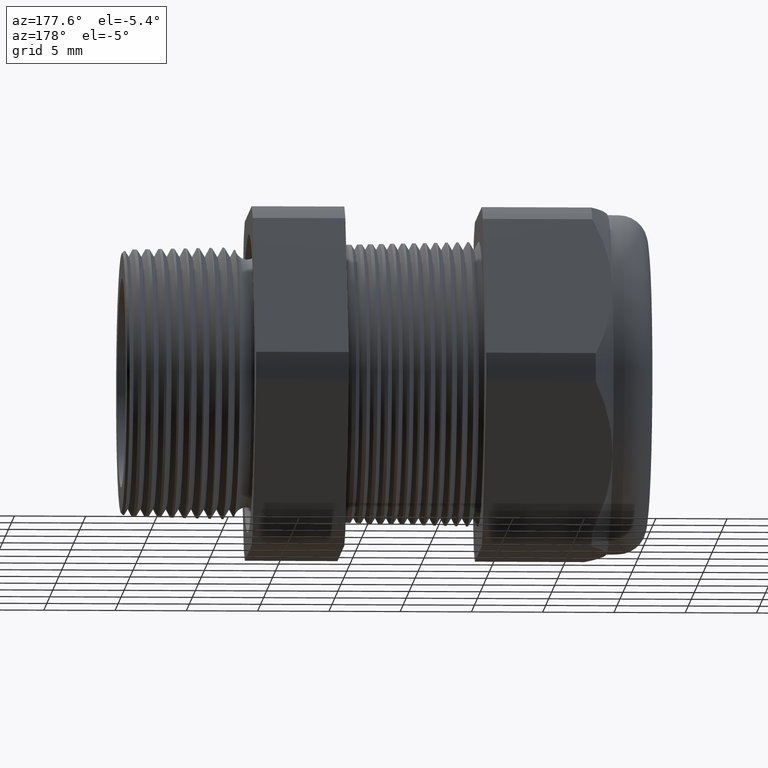
[diagram: clean part render]
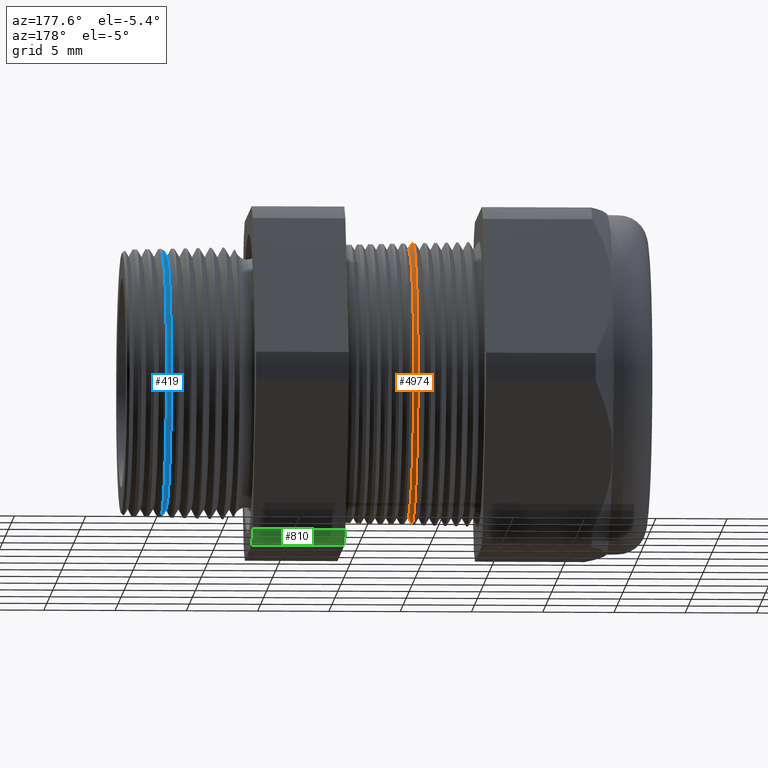
[diagram: same view with three faces highlighted in distinct colors, each labeled with its STEP entity id]
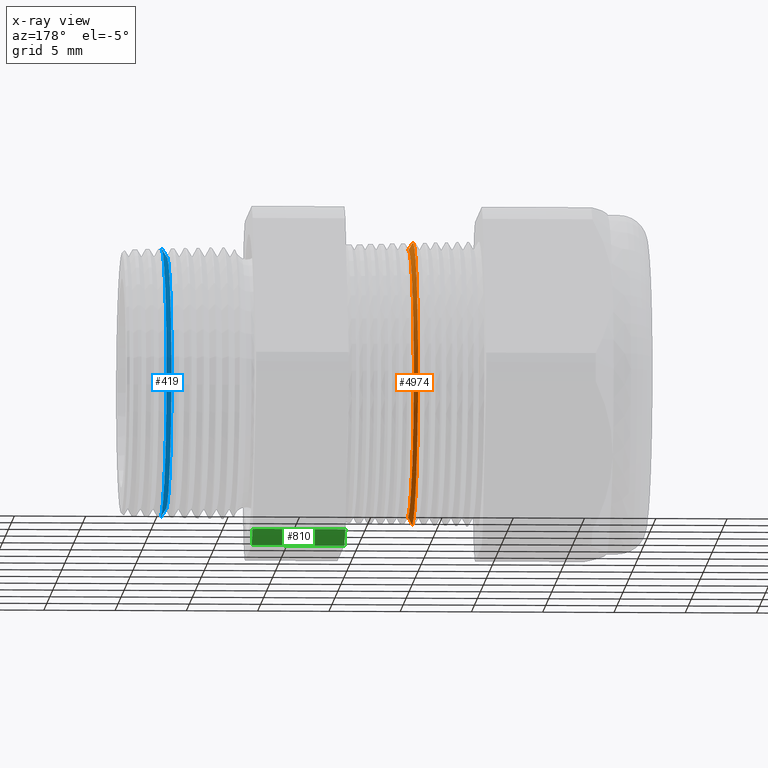
[diagram: x-ray of the same camera — body ghosted, the three highlighted faces saturated]
A machine part, auxiliary view with three faces highlighted in distinct colors.
The next image is the same camera in x-ray (body ghosted, the three faces saturated) — at least one of them is partly hidden behind the body in this view.
Their STEP definitions:

[orange] entity #4974 — the highlighted conical surface has half-angle 61.5 deg.
#3757 = CARTESIAN_POINT ( 'NONE',  ( -0.7516586839320378300, 0.0000000000000000000, 0.3696307351718083900 ) ) ;
#3865 = CARTESIAN_POINT ( 'NONE',  ( -0.7516586839320378300, 4.652734989755814500E-017, -0.3696307351718083900 ) ) ;
#4008 = DIRECTION ( 'NONE',  ( 0.0000000000000000000, 0.0000000000000000000, -1.000000000000000000 ) ) ;
#4009 = DIRECTION ( 'NONE',  ( 1.000000000000000000, 0.0000000000000000000, 0.0000000000000000000 ) ) ;
#4010 = AXIS2_PLACEMENT_3D ( 'NONE', #4017, #4009, #4008 ) ;
#4011 = CIRCLE ( 'NONE', #4010, 0.3696307351718083900 ) ;
#4017 = CARTESIAN_POINT ( 'NONE',  ( -0.7516586839320378300, 0.0000000000000000000, 0.0000000000000000000 ) ) ;
#4198 = CARTESIAN_POINT ( 'NONE',  ( -0.7628369566799664300, 0.0000000000000000000, 0.3902185524750838600 ) ) ;
#4205 = CARTESIAN_POINT ( 'NONE',  ( -0.7628369566799664300, 4.779778303123113600E-017, -0.3902185524750838600 ) ) ;
#4206 = DIRECTION ( 'NONE',  ( -0.4771587602596201200, 1.076240564057387000E-016, -0.8788171126619589400 ) ) ;
#4207 = VECTOR ( 'NONE', #4206, 39.37007874015748100 ) ;
#4208 = CARTESIAN_POINT ( 'NONE',  ( -0.7654330708661417600, 4.837354856632045600E-017, -0.3950000000000000200 ) ) ;
#4209 = LINE ( 'NONE', #4208, #4207 ) ;
#4214 = DIRECTION ( 'NONE',  ( 0.0000000000000000000, 0.0000000000000000000, 1.000000000000000000 ) ) ;
#4215 = DIRECTION ( 'NONE',  ( -1.000000000000000000, 0.0000000000000000000, 0.0000000000000000000 ) ) ;
#4216 = CARTESIAN_POINT ( 'NONE',  ( -0.7654330708661417600, 0.0000000000000000000, 0.0000000000000000000 ) ) ;
#4217 = AXIS2_PLACEMENT_3D ( 'NONE', #4216, #4215, #4214 ) ;
#4218 = CONICAL_SURFACE ( 'NONE', #4217, 0.3950000000000000200, 1.073377489976499400 ) ;
#4220 = FACE_OUTER_BOUND ( 'NONE', #4967, .T. ) ;
#4248 = DIRECTION ( 'NONE',  ( -0.4771587602596201200, 0.0000000000000000000, 0.8788171126619589400 ) ) ;
#4249 = VECTOR ( 'NONE', #4248, 39.37007874015748100 ) ;
#4250 = CARTESIAN_POINT ( 'NONE',  ( -0.7654330708661417600, 0.0000000000000000000, 0.3950000000000000200 ) ) ;
#4251 = LINE ( 'NONE', #4250, #4249 ) ;
#4252 = DIRECTION ( 'NONE',  ( 0.0000000000000000000, 0.0000000000000000000, 1.000000000000000000 ) ) ;
#4253 = DIRECTION ( 'NONE',  ( 1.000000000000000000, 0.0000000000000000000, 0.0000000000000000000 ) ) ;
#4254 = CARTESIAN_POINT ( 'NONE',  ( -0.7628369566799664300, 0.0000000000000000000, 0.0000000000000000000 ) ) ;
#4255 = AXIS2_PLACEMENT_3D ( 'NONE', #4254, #4253, #4252 ) ;
#4256 = CIRCLE ( 'NONE', #4255, 0.3902185524750838600 ) ;
#4756 = VERTEX_POINT ( 'NONE', #3757 ) ;
#4797 = VERTEX_POINT ( 'NONE', #3865 ) ;
#4880 = EDGE_CURVE ( 'NONE', #4797, #4756, #4011, .T. ) ;
#4967 = EDGE_LOOP ( 'NONE', ( #4969, #4984, #4988, #4989 ) ) ;
#4969 = ORIENTED_EDGE ( 'NONE', *, *, #4880, .F. ) ;
#4974 = ADVANCED_FACE ( 'NONE', ( #4220 ), #4218, .T. ) ;
#4977 = EDGE_CURVE ( 'NONE', #4797, #4978, #4209, .T. ) ;
#4978 = VERTEX_POINT ( 'NONE', #4205 ) ;
#4982 = VERTEX_POINT ( 'NONE', #4198 ) ;
#4984 = ORIENTED_EDGE ( 'NONE', *, *, #4977, .T. ) ;
#4986 = EDGE_CURVE ( 'NONE', #4978, #4982, #4256, .T. ) ;
#4987 = EDGE_CURVE ( 'NONE', #4756, #4982, #4251, .T. ) ;
#4988 = ORIENTED_EDGE ( 'NONE', *, *, #4986, .T. ) ;
#4989 = ORIENTED_EDGE ( 'NONE', *, *, #4987, .F. ) ;

[blue] entity #419 — the highlighted conical surface has half-angle 58.5 deg.
#419 = ADVANCED_FACE ( 'NONE', ( #1858 ), #1857, .T. ) ;
#1854 = AXIS2_PLACEMENT_3D ( 'NONE', #1855, #1904, #1903 ) ;
#1855 = CARTESIAN_POINT ( 'NONE',  ( -0.08347073567907513400, 0.0000000000000000000, 0.0000000000000000000 ) ) ;
#1857 = CONICAL_SURFACE ( 'NONE', #1854, 0.3479174816500062400, 1.021017612416698500 ) ;
#1858 = FACE_OUTER_BOUND ( 'NONE', #4382, .T. ) ;
#1903 = DIRECTION ( 'NONE',  ( 0.0000000000000000000, 0.0000000000000000000, -1.000000000000000000 ) ) ;
#1904 = DIRECTION ( 'NONE',  ( 1.000000000000000000, 0.0000000000000000000, 0.0000000000000000000 ) ) ;
#3182 = DIRECTION ( 'NONE',  ( 0.5224985647159355900, 1.044183048100722300E-016, 0.8526401643541005000 ) ) ;
#3183 = VECTOR ( 'NONE', #3182, 39.37007874015747400 ) ;
#3184 = CARTESIAN_POINT ( 'NONE',  ( -0.08347073567907513400, 4.260760302700881100E-017, 0.3479174816500062400 ) ) ;
#3189 = LINE ( 'NONE', #3184, #3183 ) ;
#3219 = DIRECTION ( 'NONE',  ( 0.5224985647159355900, 0.0000000000000000000, -0.8526401643541005000 ) ) ;
#3220 = VECTOR ( 'NONE', #3219, 39.37007874015747400 ) ;
#3221 = CARTESIAN_POINT ( 'NONE',  ( -0.08347073567907513400, 0.0000000000000000000, -0.3479174816500062400 ) ) ;
#3222 = LINE ( 'NONE', #3221, #3220 ) ;
#3231 = CARTESIAN_POINT ( 'NONE',  ( -0.08347073567907513400, 4.413013060806649300E-017, -0.3479174816500062400 ) ) ;
#3243 = CARTESIAN_POINT ( 'NONE',  ( -0.08347073567907513400, 0.0000000000000000000, 0.3479174816500062400 ) ) ;
#3256 = CARTESIAN_POINT ( 'NONE',  ( -0.06868745204509199600, 0.0000000000000000000, 0.3720416079894299800 ) ) ;
#3257 = CARTESIAN_POINT ( 'NONE',  ( -0.06868745204509199600, 4.556195643738898400E-017, -0.3720416079894299800 ) ) ;
#3277 = DIRECTION ( 'NONE',  ( 0.0000000000000000000, 0.0000000000000000000, -1.000000000000000000 ) ) ;
#3278 = DIRECTION ( 'NONE',  ( -1.000000000000000000, 0.0000000000000000000, 0.0000000000000000000 ) ) ;
#3279 = AXIS2_PLACEMENT_3D ( 'NONE', #3286, #3278, #3277 ) ;
#3280 = CIRCLE ( 'NONE', #3279, 0.3720416079894300300 ) ;
#3286 = CARTESIAN_POINT ( 'NONE',  ( -0.06868745204509199600, 0.0000000000000000000, 0.0000000000000000000 ) ) ;
#3332 = DIRECTION ( 'NONE',  ( 0.0000000000000000000, 0.0000000000000000000, -1.000000000000000000 ) ) ;
#3333 = DIRECTION ( 'NONE',  ( 1.000000000000000000, 0.0000000000000000000, 0.0000000000000000000 ) ) ;
#3334 = CARTESIAN_POINT ( 'NONE',  ( -0.08347073567907513400, 0.0000000000000000000, 0.0000000000000000000 ) ) ;
#3335 = AXIS2_PLACEMENT_3D ( 'NONE', #3334, #3333, #3332 ) ;
#3336 = CIRCLE ( 'NONE', #3335, 0.3479174816500062400 ) ;
#4382 = EDGE_LOOP ( 'NONE', ( #4383, #4458, #4508, #4467 ) ) ;
#4383 = ORIENTED_EDGE ( 'NONE', *, *, #4511, .T. ) ;
#4458 = ORIENTED_EDGE ( 'NONE', *, *, #4460, .T. ) ;
#4460 = EDGE_CURVE ( 'NONE', #4465, #4484, #3189, .T. ) ;
#4465 = VERTEX_POINT ( 'NONE', #3243 ) ;
#4467 = ORIENTED_EDGE ( 'NONE', *, *, #4476, .F. ) ;
#4472 = VERTEX_POINT ( 'NONE', #3231 ) ;
#4476 = EDGE_CURVE ( 'NONE', #4472, #4483, #3222, .T. ) ;
#4483 = VERTEX_POINT ( 'NONE', #3257 ) ;
#4484 = VERTEX_POINT ( 'NONE', #3256 ) ;
#4507 = EDGE_CURVE ( 'NONE', #4484, #4483, #3280, .T. ) ;
#4508 = ORIENTED_EDGE ( 'NONE', *, *, #4507, .T. ) ;
#4511 = EDGE_CURVE ( 'NONE', #4472, #4465, #3336, .T. ) ;

[green] entity #810 — the highlighted cylindrical surface (partial cylindrical patch) has radius 13.2512 mm, axis along (-1, 0, 0).
#539 = VERTEX_POINT ( 'NONE', #2166 ) ;
#595 = VERTEX_POINT ( 'NONE', #2300 ) ;
#597 = EDGE_CURVE ( 'NONE', #595, #539, #2299, .T. ) ;
#613 = VERTEX_POINT ( 'NONE', #2333 ) ;
#669 = EDGE_CURVE ( 'NONE', #613, #670, #2428, .T. ) ;
#670 = VERTEX_POINT ( 'NONE', #2423 ) ;
#788 = ORIENTED_EDGE ( 'NONE', *, *, #808, .T. ) ;
#789 = ORIENTED_EDGE ( 'NONE', *, *, #669, .F. ) ;
#790 = ORIENTED_EDGE ( 'NONE', *, *, #791, .F. ) ;
#791 = EDGE_CURVE ( 'NONE', #539, #613, #2583, .T. ) ;
#792 = ORIENTED_EDGE ( 'NONE', *, *, #597, .F. ) ;
#808 = EDGE_CURVE ( 'NONE', #595, #670, #2630, .T. ) ;
#810 = ADVANCED_FACE ( 'NONE', ( #2626 ), #2624, .T. ) ;
#811 = EDGE_LOOP ( 'NONE', ( #788, #789, #790, #792 ) ) ;
#2166 = CARTESIAN_POINT ( 'NONE',  ( -0.3100000000000000000, 0.2938165587564948700, -0.4310947921287048800 ) ) ;
#2295 = DIRECTION ( 'NONE',  ( 0.0000000000000000000, 0.0000000000000000000, -1.000000000000000000 ) ) ;
#2296 = DIRECTION ( 'NONE',  ( 1.000000000000000000, 0.0000000000000000000, 0.0000000000000000000 ) ) ;
#2297 = CARTESIAN_POINT ( 'NONE',  ( -0.3100000000000000000, 0.0000000000000000000, 0.0000000000000000000 ) ) ;
#2298 = AXIS2_PLACEMENT_3D ( 'NONE', #2297, #2296, #2295 ) ;
#2299 = CIRCLE ( 'NONE', #2298, 0.5217000000000000500 ) ;
#2300 = CARTESIAN_POINT ( 'NONE',  ( -0.3100000000000000000, 0.2264307620443831200, -0.4700000000000000300 ) ) ;
#2333 = CARTESIAN_POINT ( 'NONE',  ( -0.5659055118110234400, 0.2938165587564949800, -0.4310947921287048800 ) ) ;
#2423 = CARTESIAN_POINT ( 'NONE',  ( -0.5659055118110234400, 0.2264307620443831200, -0.4700000000000000300 ) ) ;
#2424 = DIRECTION ( 'NONE',  ( 0.0000000000000000000, 0.0000000000000000000, 1.000000000000000000 ) ) ;
#2425 = DIRECTION ( 'NONE',  ( -1.000000000000000000, 0.0000000000000000000, 0.0000000000000000000 ) ) ;
#2426 = CARTESIAN_POINT ( 'NONE',  ( -0.5659055118110234400, 0.0000000000000000000, 0.0000000000000000000 ) ) ;
#2427 = AXIS2_PLACEMENT_3D ( 'NONE', #2426, #2425, #2424 ) ;
#2428 = CIRCLE ( 'NONE', #2427, 0.5217000000000000500 ) ;
#2580 = DIRECTION ( 'NONE',  ( -1.000000000000000000, 0.0000000000000000000, 0.0000000000000000000 ) ) ;
#2581 = VECTOR ( 'NONE', #2580, 39.37007874015748100 ) ;
#2582 = CARTESIAN_POINT ( 'NONE',  ( 0.03999999999999984800, 0.2938165587564948700, -0.4310947921287048800 ) ) ;
#2583 = LINE ( 'NONE', #2582, #2581 ) ;
#2620 = DIRECTION ( 'NONE',  ( 0.0000000000000000000, 0.0000000000000000000, 1.000000000000000000 ) ) ;
#2621 = DIRECTION ( 'NONE',  ( -1.000000000000000000, 0.0000000000000000000, 0.0000000000000000000 ) ) ;
#2622 = CARTESIAN_POINT ( 'NONE',  ( 0.03999999999999984800, 0.0000000000000000000, 0.0000000000000000000 ) ) ;
#2623 = AXIS2_PLACEMENT_3D ( 'NONE', #2622, #2621, #2620 ) ;
#2624 = CYLINDRICAL_SURFACE ( 'NONE', #2623, 0.5217000000000000500 ) ;
#2626 = FACE_OUTER_BOUND ( 'NONE', #811, .T. ) ;
#2627 = DIRECTION ( 'NONE',  ( -1.000000000000000000, 0.0000000000000000000, 0.0000000000000000000 ) ) ;
#2628 = VECTOR ( 'NONE', #2627, 39.37007874015748100 ) ;
#2629 = CARTESIAN_POINT ( 'NONE',  ( 0.03999999999999984800, 0.2264307620443831200, -0.4700000000000000300 ) ) ;
#2630 = LINE ( 'NONE', #2629, #2628 ) ;